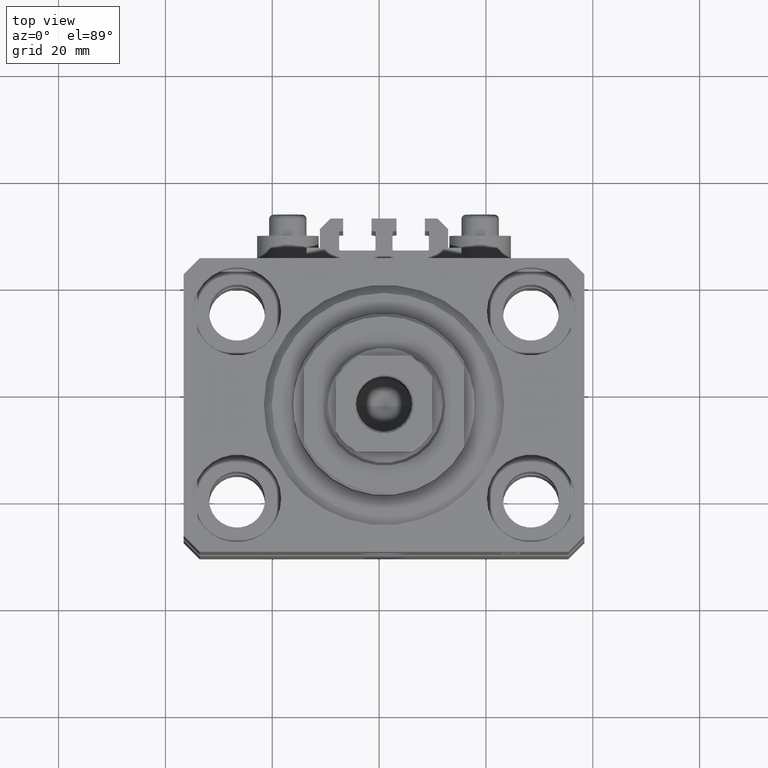
[diagram: clean part render]
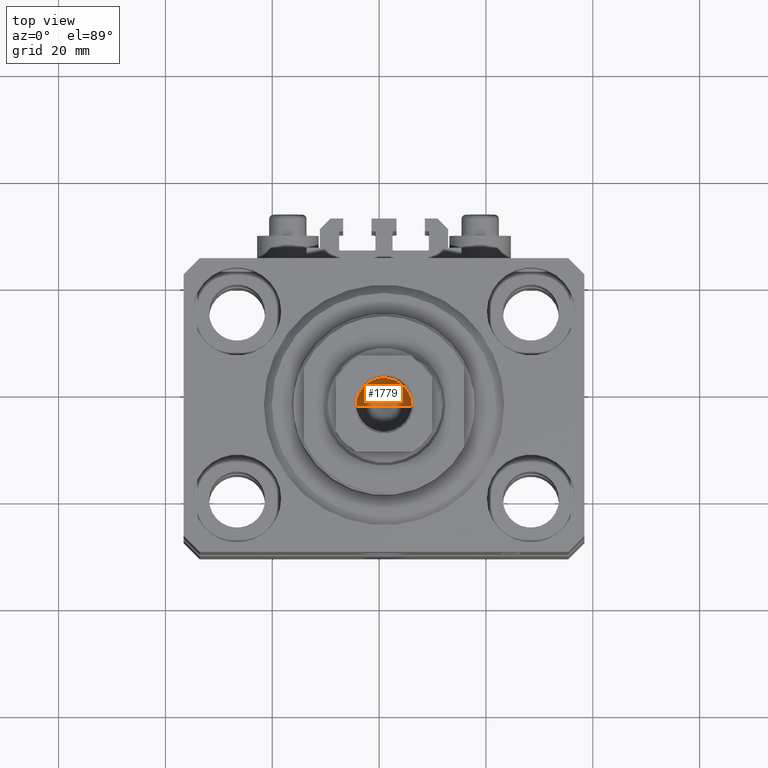
[diagram: same view with one face highlighted and labeled with its STEP entity id]
A machine part, top view. The second image highlights one B-rep face of the part: STEP entity #1779.
In plain terms, the highlighted conical surface has half-angle 59 deg.
Its self-contained STEP definition (entity closure, byte-faithful):
#1779 = ADVANCED_FACE ( 'NONE', ( #40420 ), #11741, .F. ) ;
#7911 = AXIS2_PLACEMENT_3D ( 'NONE', #21989, #25834, #44495 ) ;
#9846 = DIRECTION ( 'NONE',  ( -0.8571673007021118895, 1.049727191138618079E-16, 0.5150380749100549327 ) ) ;
#11741 = CONICAL_SURFACE ( 'NONE', #7911, 5.249999999999994671, 1.029744258676653645 ) ;
#13487 = EDGE_CURVE ( 'NONE', #24633, #42494, #37394, .T. ) ;
#16096 = DIRECTION ( 'NONE',  ( 0.8571673007021118895, 0.000000000000000000, 0.5150380749100549327 ) ) ;
#17074 = VECTOR ( 'NONE', #16096, 1000.000000000000000 ) ;
#18784 = ORIENTED_EDGE ( 'NONE', *, *, #13487, .T. ) ;
#18834 = DIRECTION ( 'NONE',  ( -0.000000000000000000, -0.000000000000000000, 1.000000000000000000 ) ) ;
#19024 = AXIS2_PLACEMENT_3D ( 'NONE', #36817, #18834, #39926 ) ;
#19687 = LINE ( 'NONE', #34308, #17074 ) ;
#21309 = LINE ( 'NONE', #28979, #31723 ) ;
#21989 = CARTESIAN_POINT ( 'NONE',  ( 0.000000000000000000, 0.000000000000000000, 60.10000000000000853 ) ) ;
#24396 = CARTESIAN_POINT ( 'NONE',  ( -5.249999999999994671, 6.429395695523597250E-16, 60.10000000000000853 ) ) ;
#24463 = CARTESIAN_POINT ( 'NONE',  ( -6.783656367213677939E-15, 0.000000000000000000, 56.94548175010531565 ) ) ;
#24633 = VERTEX_POINT ( 'NONE', #43515 ) ;
#25834 = DIRECTION ( 'NONE',  ( -0.000000000000000000, -0.000000000000000000, 1.000000000000000000 ) ) ;
#28979 = CARTESIAN_POINT ( 'NONE',  ( -5.249999999999994671, 6.429395695523597250E-16, 60.10000000000000853 ) ) ;
#30181 = ORIENTED_EDGE ( 'NONE', *, *, #30993, .T. ) ;
#30993 = EDGE_CURVE ( 'NONE', #31079, #24633, #19687, .T. ) ;
#31079 = VERTEX_POINT ( 'NONE', #24463 ) ;
#31723 = VECTOR ( 'NONE', #9846, 1000.000000000000000 ) ;
#34308 = CARTESIAN_POINT ( 'NONE',  ( 5.249999999999994671, 0.000000000000000000, 60.10000000000000853 ) ) ;
#34763 = EDGE_CURVE ( 'NONE', #31079, #42494, #21309, .T. ) ;
#35845 = EDGE_LOOP ( 'NONE', ( #46468, #30181, #18784 ) ) ;
#36817 = CARTESIAN_POINT ( 'NONE',  ( 0.000000000000000000, 0.000000000000000000, 60.10000000000000853 ) ) ;
#37394 = CIRCLE ( 'NONE', #19024, 5.249999999999994671 ) ;
#39926 = DIRECTION ( 'NONE',  ( 1.000000000000000000, 0.000000000000000000, 0.000000000000000000 ) ) ;
#40420 = FACE_OUTER_BOUND ( 'NONE', #35845, .T. ) ;
#42494 = VERTEX_POINT ( 'NONE', #24396 ) ;
#43515 = CARTESIAN_POINT ( 'NONE',  ( 5.249999999999994671, 0.000000000000000000, 60.10000000000000853 ) ) ;
#44495 = DIRECTION ( 'NONE',  ( 1.000000000000000000, 0.000000000000000000, 0.000000000000000000 ) ) ;
#46468 = ORIENTED_EDGE ( 'NONE', *, *, #34763, .F. ) ;